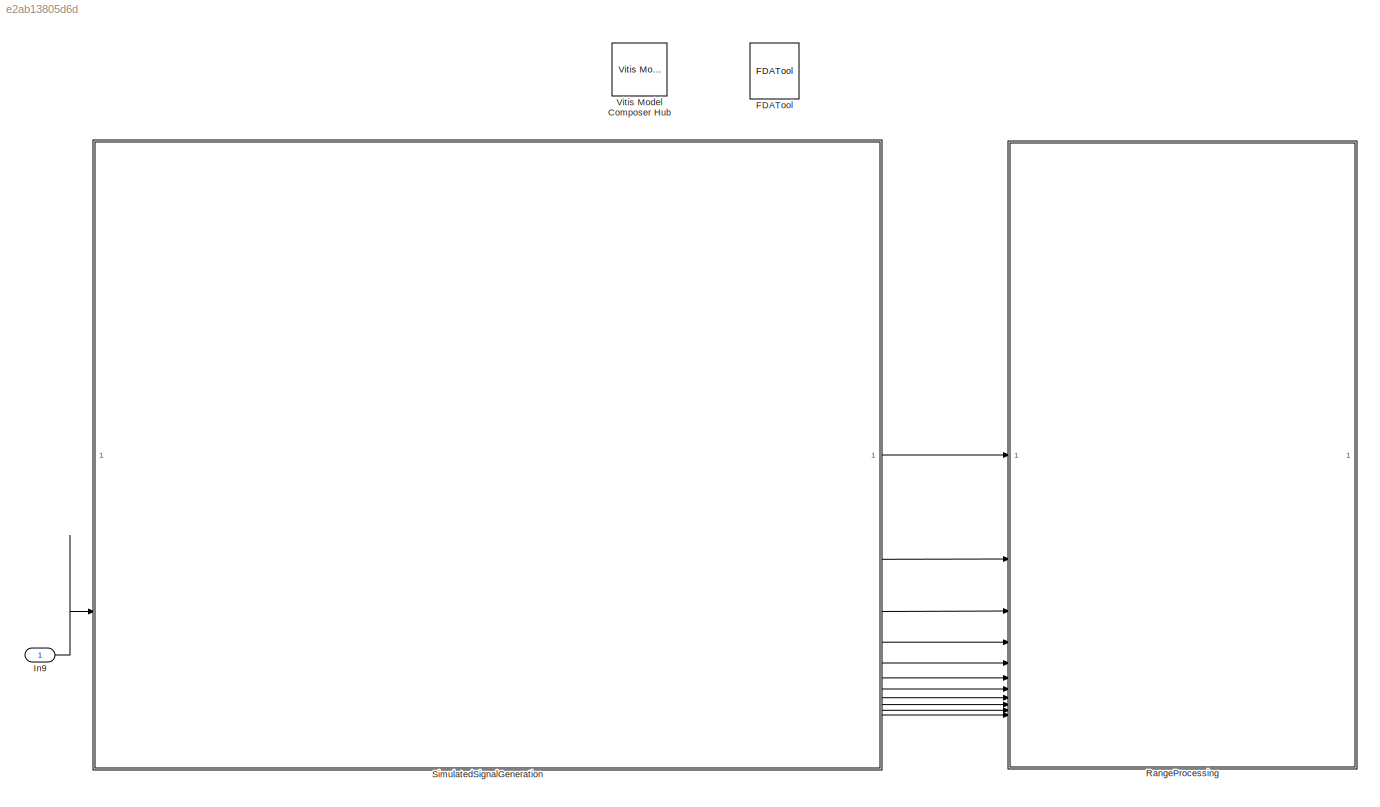
MODEL slx_e2ab13805d6d
KIND model
CONFIG AbsTol = auto
CONFIG EnableMultiTasking = off
CONFIG FixedStep = auto
CONFIG MaxStep = auto
CONFIG MinStep = auto
CONFIG RelTol = 1e-3
CONFIG SampleTimeConstraint = Unconstrained
CONFIG SolverName = VariableStepAuto
CONFIG StartTime = 0.0
CONFIG StopTime = 0.001
BLOCK [Reference] FDATool  REF=hdlUtilities/FDATool
  SourceBlock = hdlUtilities/FDATool
  SourceType = Xilinx FDATool Interface Block
  UserDataPersistent = on
BLOCK [Inport] In9
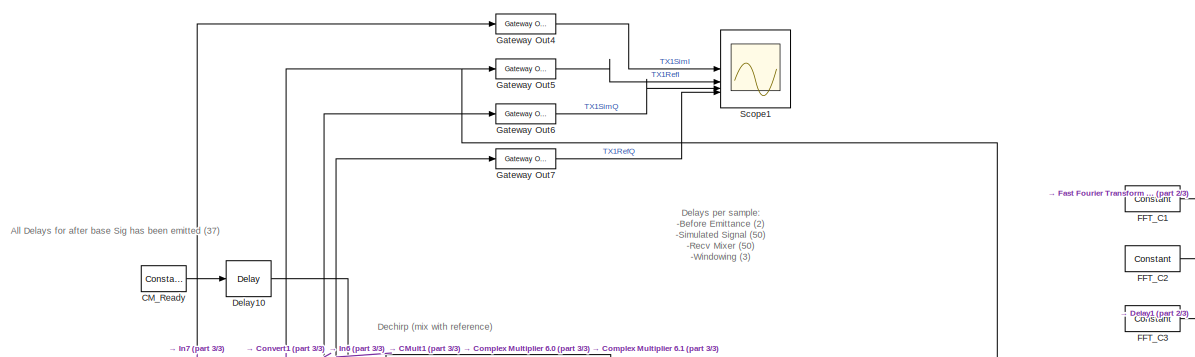
[diagram: RangeProcessing - part 1/3, top left region]
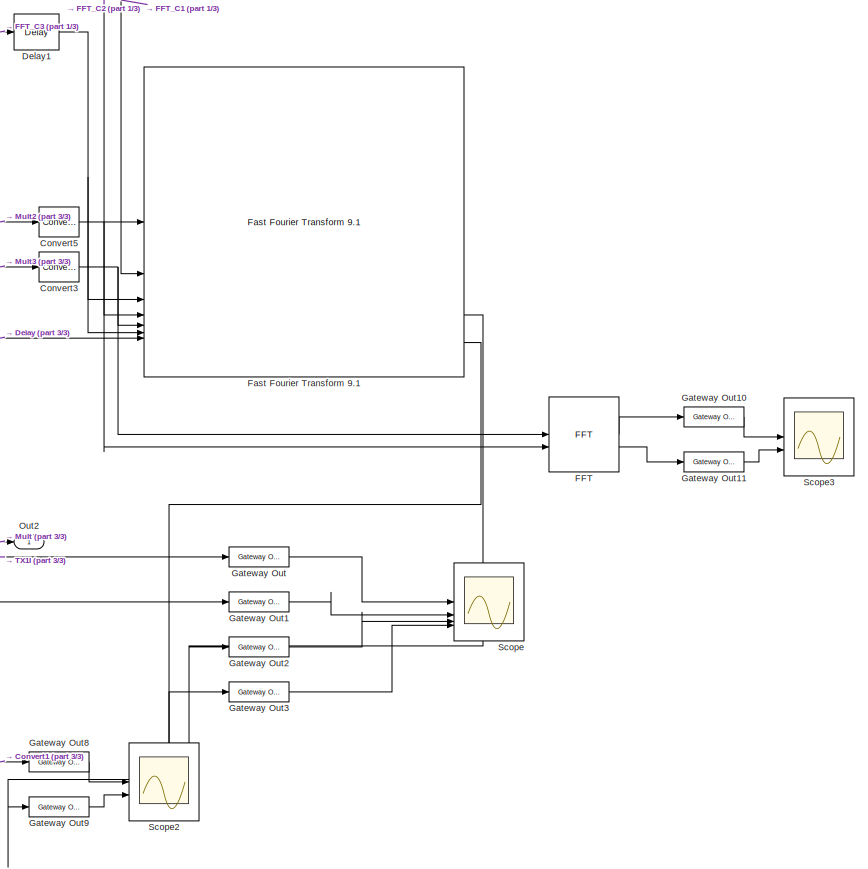
[diagram: RangeProcessing - part 2/3, middle right region]
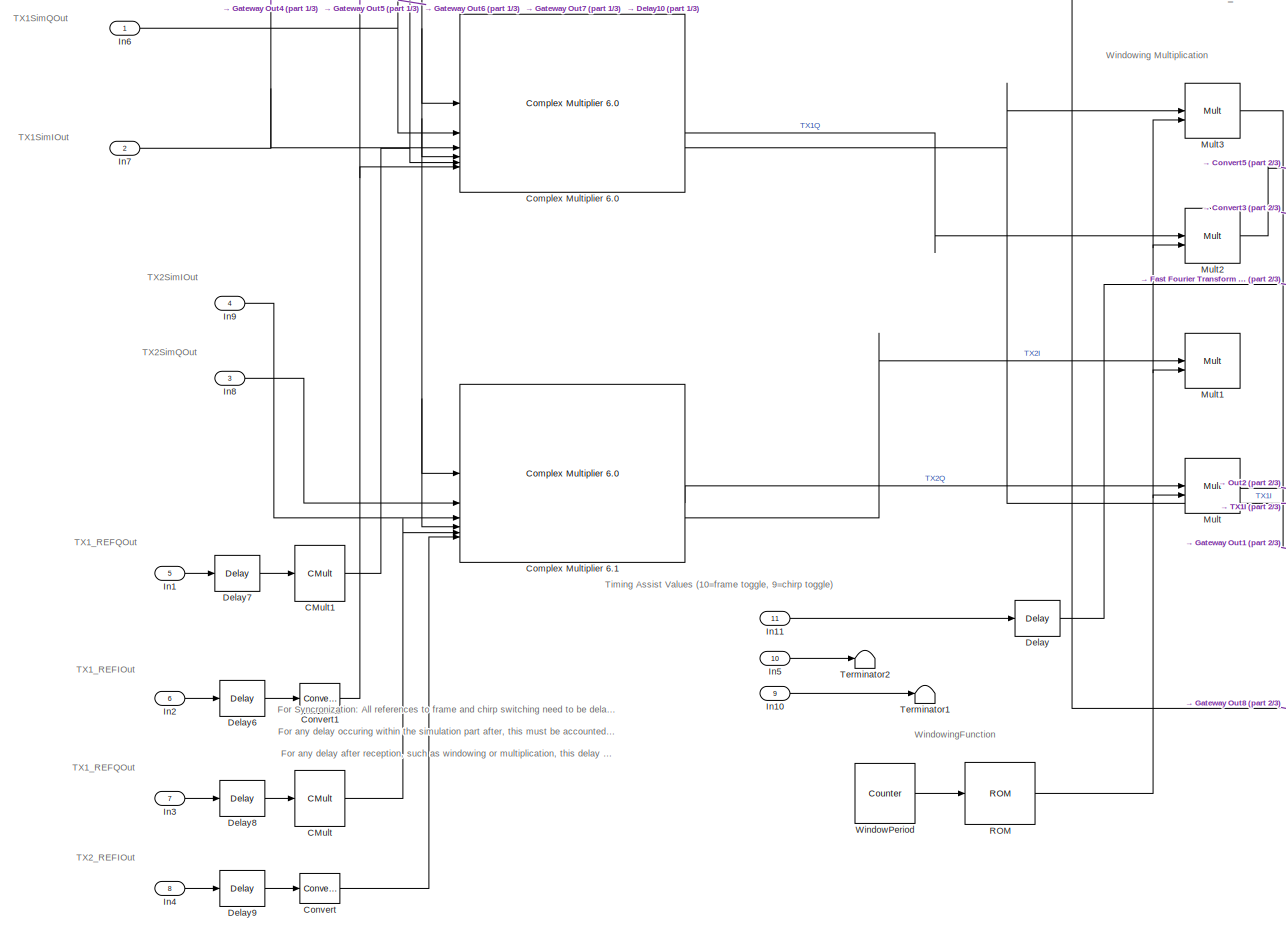
[diagram: RangeProcessing - part 3/3, middle left region]
BLOCK [SubSystem] RangeProcessing
BLOCK [Reference] RangeProcessing/CM_Ready  REF=hdlBasic/Constant
  SourceBlock = hdlBasic/Constant
  SourceType = Constant Block Block
BLOCK [Reference] RangeProcessing/CMult  REF=hdlBasic/CMult
  SourceBlock = hdlBasic/CMult
  SourceType = Constant Multiplier Block
BLOCK [Reference] RangeProcessing/CMult1  REF=hdlBasic/CMult
  SourceBlock = hdlBasic/CMult
  SourceType = Constant Multiplier Block
BLOCK [Reference] RangeProcessing/Complex Multiplier 6.0  REF=hdlDSPIP/Complex Multiplier 6.0 
  SourceBlock = hdlDSPIP/Complex Multiplier 6.0
  SourceType = Complex Multiplier 6.0  Block
BLOCK [Reference] RangeProcessing/Complex Multiplier 6.1  REF=hdlDSPIP/Complex Multiplier 6.0 
  SourceBlock = hdlDSPIP/Complex Multiplier 6.0
  SourceType = Complex Multiplier 6.0  Block
BLOCK [Reference] RangeProcessing/Convert  REF=hdlBasic/Convert
  SourceBlock = hdlBasic/Convert
  SourceType = Type Converter Block
BLOCK [Reference] RangeProcessing/Convert1  REF=hdlBasic/Convert
  SourceBlock = hdlBasic/Convert
  SourceType = Type Converter Block
BLOCK [Reference] RangeProcessing/Convert3  REF=hdlBasic/Convert
  SourceBlock = hdlBasic/Convert
  SourceType = Type Converter Block
BLOCK [Reference] RangeProcessing/Convert5  REF=hdlBasic/Convert
  SourceBlock = hdlBasic/Convert
  SourceType = Type Converter Block
BLOCK [Reference] RangeProcessing/Delay  REF=hdlBasic/Delay
  SourceBlock = hdlBasic/Delay
  SourceType = Delay Block
BLOCK [Reference] RangeProcessing/Delay1  REF=hdlBasic/Delay
  SourceBlock = hdlBasic/Delay
  SourceType = Delay Block
BLOCK [Reference] RangeProcessing/Delay10  REF=hdlBasic/Delay
  SourceBlock = hdlBasic/Delay
  SourceType = Delay Block
BLOCK [Reference] RangeProcessing/Delay6  REF=hdlBasic/Delay
  SourceBlock = hdlBasic/Delay
  SourceType = Delay Block
BLOCK [Reference] RangeProcessing/Delay7  REF=hdlBasic/Delay
  SourceBlock = hdlBasic/Delay
  SourceType = Delay Block
BLOCK [Reference] RangeProcessing/Delay8  REF=hdlBasic/Delay
  SourceBlock = hdlBasic/Delay
  SourceType = Delay Block
BLOCK [Reference] RangeProcessing/Delay9  REF=hdlBasic/Delay
  SourceBlock = hdlBasic/Delay
  SourceType = Delay Block
BLOCK [Reference] RangeProcessing/FFT  REF=hdlBasic/FFT
  SourceBlock = hdlBasic/FFT
  SourceType = Forward Fast Fourier Transform Block
BLOCK [Reference] RangeProcessing/FFT_C1  REF=hdlBasic/Constant
  SourceBlock = hdlBasic/Constant
  SourceType = Constant Block Block
BLOCK [Reference] RangeProcessing/FFT_C2  REF=hdlBasic/Constant
  SourceBlock = hdlBasic/Constant
  SourceType = Constant Block Block
BLOCK [Reference] RangeProcessing/FFT_C3  REF=hdlBasic/Constant
  SourceBlock = hdlBasic/Constant
  SourceType = Constant Block Block
BLOCK [Reference] RangeProcessing/Fast Fourier Transform 9.1  REF=hdlDSPIP/Fast Fourier Transform 9.1 
  SourceBlock = hdlDSPIP/Fast Fourier Transform 9.1
  SourceType = Fast Fourier Transform 9.1  Block
BLOCK [Reference] RangeProcessing/Gateway Out  REF=hdlBasic/Gateway Out
  SourceBlock = hdlBasic/Gateway Out
  SourceType = Gateway Out Block
BLOCK [Reference] RangeProcessing/Gateway Out1  REF=hdlBasic/Gateway Out
  SourceBlock = hdlBasic/Gateway Out
  SourceType = Gateway Out Block
BLOCK [Reference] RangeProcessing/Gateway Out10  REF=hdlBasic/Gateway Out
  SourceBlock = hdlBasic/Gateway Out
  SourceType = Gateway Out Block
BLOCK [Reference] RangeProcessing/Gateway Out11  REF=hdlBasic/Gateway Out
  SourceBlock = hdlBasic/Gateway Out
  SourceType = Gateway Out Block
BLOCK [Reference] RangeProcessing/Gateway Out2  REF=hdlBasic/Gateway Out
  SourceBlock = hdlBasic/Gateway Out
  SourceType = Gateway Out Block
BLOCK [Reference] RangeProcessing/Gateway Out3  REF=hdlBasic/Gateway Out
  SourceBlock = hdlBasic/Gateway Out
  SourceType = Gateway Out Block
BLOCK [Reference] RangeProcessing/Gateway Out4  REF=hdlBasic/Gateway Out
  SourceBlock = hdlBasic/Gateway Out
  SourceType = Gateway Out Block
BLOCK [Reference] RangeProcessing/Gateway Out5  REF=hdlBasic/Gateway Out
  SourceBlock = hdlBasic/Gateway Out
  SourceType = Gateway Out Block
BLOCK [Reference] RangeProcessing/Gateway Out6  REF=hdlBasic/Gateway Out
  SourceBlock = hdlBasic/Gateway Out
  SourceType = Gateway Out Block
BLOCK [Reference] RangeProcessing/Gateway Out7  REF=hdlBasic/Gateway Out
  SourceBlock = hdlBasic/Gateway Out
  SourceType = Gateway Out Block
BLOCK [Reference] RangeProcessing/Gateway Out8  REF=hdlBasic/Gateway Out
  SourceBlock = hdlBasic/Gateway Out
  SourceType = Gateway Out Block
BLOCK [Reference] RangeProcessing/Gateway Out9  REF=hdlBasic/Gateway Out
  SourceBlock = hdlBasic/Gateway Out
  SourceType = Gateway Out Block
BLOCK [Inport] RangeProcessing/In1
  Port = 5
BLOCK [Inport] RangeProcessing/In10
  Port = 9
BLOCK [Inport] RangeProcessing/In11
  Port = 11
BLOCK [Inport] RangeProcessing/In2
  Port = 6
BLOCK [Inport] RangeProcessing/In3
  Port = 7
BLOCK [Inport] RangeProcessing/In4
  Port = 8
BLOCK [Inport] RangeProcessing/In5
  Port = 10
BLOCK [Inport] RangeProcessing/In6
BLOCK [Inport] RangeProcessing/In7
  Port = 2
BLOCK [Inport] RangeProcessing/In8
  Port = 3
BLOCK [Inport] RangeProcessing/In9
  Port = 4
BLOCK [Reference] RangeProcessing/Mult  REF=hdlBasic/Mult
  SourceBlock = hdlBasic/Mult
  SourceType = Multiplier Block
BLOCK [Reference] RangeProcessing/Mult1  REF=hdlBasic/Mult
  SourceBlock = hdlBasic/Mult
  SourceType = Multiplier Block
BLOCK [Reference] RangeProcessing/Mult2  REF=hdlBasic/Mult
  SourceBlock = hdlBasic/Mult
  SourceType = Multiplier Block
BLOCK [Reference] RangeProcessing/Mult3  REF=hdlBasic/Mult
  SourceBlock = hdlBasic/Mult
  SourceType = Multiplier Block
BLOCK [Outport] RangeProcessing/Out2
BLOCK [Reference] RangeProcessing/ROM  REF=hdlBasic/ROM
  SourceBlock = hdlBasic/ROM
  SourceType = Single Port Read-Only Memory Block
BLOCK [Scope] RangeProcessing/Scope
  Floating = off
  NumInputPorts = 4
  ScopeSpecificationString = Simulink.scopes.TimeScopeBlockCfg('CurrentConfiguration', extmgr.ConfigurationSet(extmgr.Configuration('Core','General UI',true),extmgr.Configuration('Core','Source UI',true),extmgr.Configuration('Sources','WiredSimulink',true),extmgr.Configuration('Visuals','Time Domain',true,'SerializedDisplays',{struct('MinYLimReal','-1.24977','MaxYLimReal','1.24977','YLabelReal','','MinYLimMag','0.00000','MaxY...<+4159ch>
BLOCK [Scope] RangeProcessing/Scope1
  Floating = off
  NumInputPorts = 4
  ScopeSpecificationString = Simulink.scopes.TimeScopeBlockCfg('CurrentConfiguration', extmgr.ConfigurationSet(extmgr.Configuration('Core','General UI',true),extmgr.Configuration('Core','Source UI',true),extmgr.Configuration('Sources','WiredSimulink',true,'DataLoggingVariableName','ScopeData1'),extmgr.Configuration('Visuals','Time Domain',true,'SerializedDisplays',{struct('MinYLimReal','-1.24977','MaxYLimReal','1.24977','YLab...<+3833ch>
BLOCK [Scope] RangeProcessing/Scope2
  Floating = off
  NumInputPorts = 2
  ScopeSpecificationString = Simulink.scopes.TimeScopeBlockCfg('CurrentConfiguration', extmgr.ConfigurationSet(extmgr.Configuration('Core','General UI',true),extmgr.Configuration('Core','Source UI',true),extmgr.Configuration('Sources','WiredSimulink',true,'DataLoggingVariableName','ScopeData1'),extmgr.Configuration('Visuals','Time Domain',true,'SerializedDisplays',{struct('MinYLimReal','-1.24977','MaxYLimReal','1.24977','YLab...<+2620ch>
BLOCK [Scope] RangeProcessing/Scope3
  Floating = off
  NumInputPorts = 2
  ScopeSpecificationString = Simulink.scopes.TimeScopeBlockCfg('CurrentConfiguration', extmgr.ConfigurationSet(extmgr.Configuration('Core','General UI',true),extmgr.Configuration('Core','Source UI',true),extmgr.Configuration('Sources','WiredSimulink',true,'DataLoggingVariableName','ScopeData2'),extmgr.Configuration('Visuals','Time Domain',true,'SerializedDisplays',{struct('MinYLimReal','-1.24977','MaxYLimReal','1.24977','YLab...<+2597ch>
BLOCK [Terminator] RangeProcessing/Terminator1
BLOCK [Terminator] RangeProcessing/Terminator2
BLOCK [Reference] RangeProcessing/WindowPeriod  REF=hdlBasic/Counter
  SourceBlock = hdlBasic/Counter
  SourceType = Counter Block
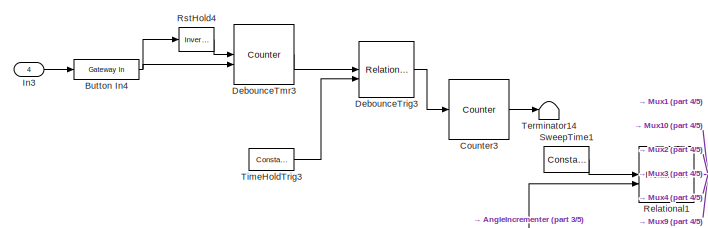
[diagram: SimulatedSignalGeneration - part 1/5, top left region]
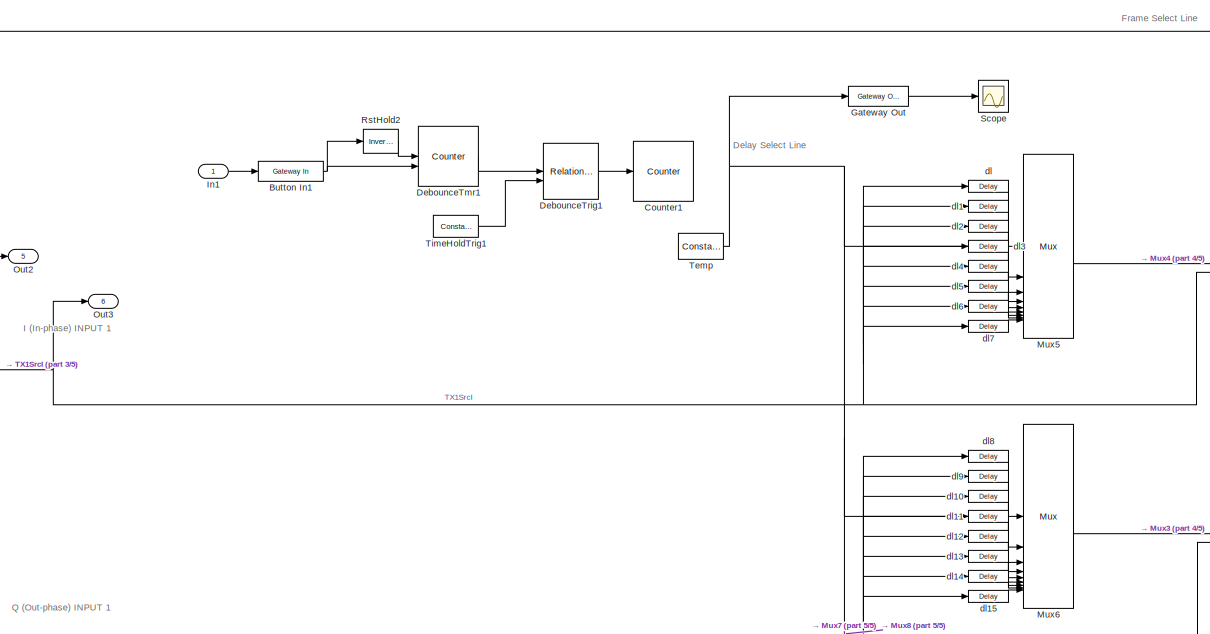
[diagram: SimulatedSignalGeneration - part 2/5, top center region]
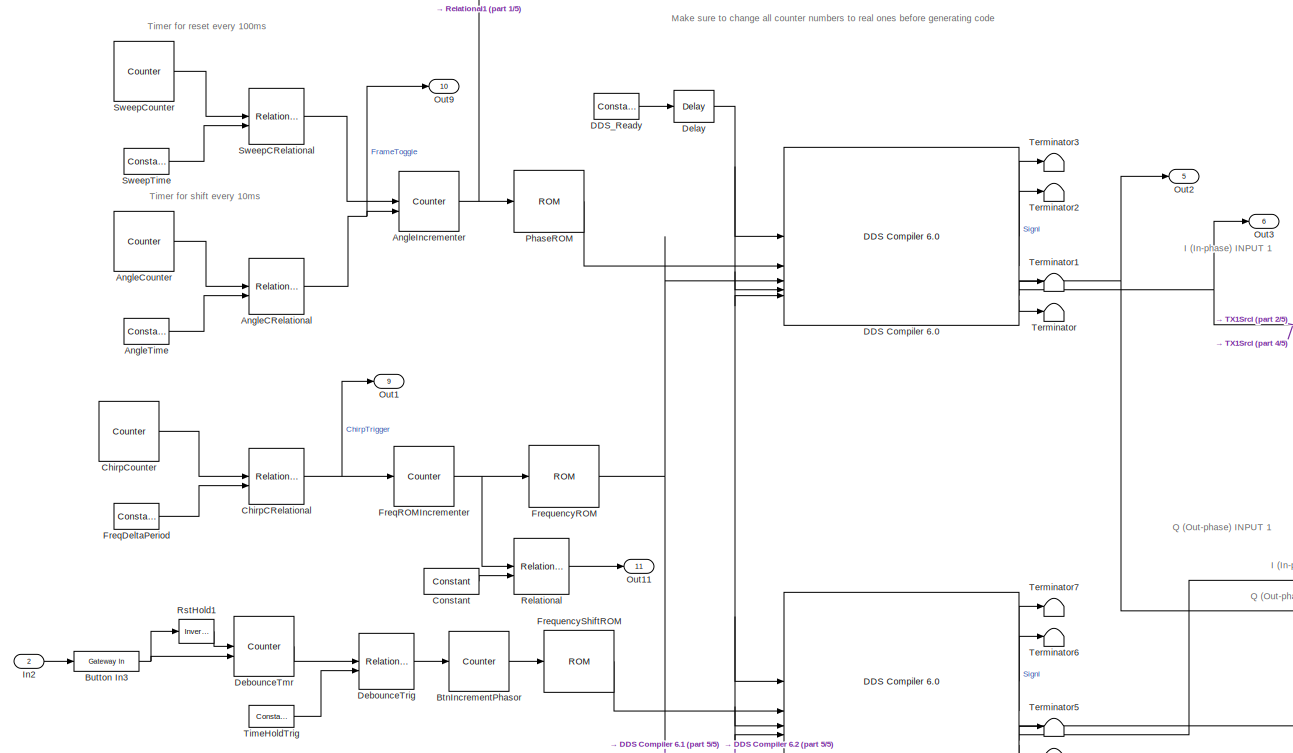
[diagram: SimulatedSignalGeneration - part 3/5, middle left region]
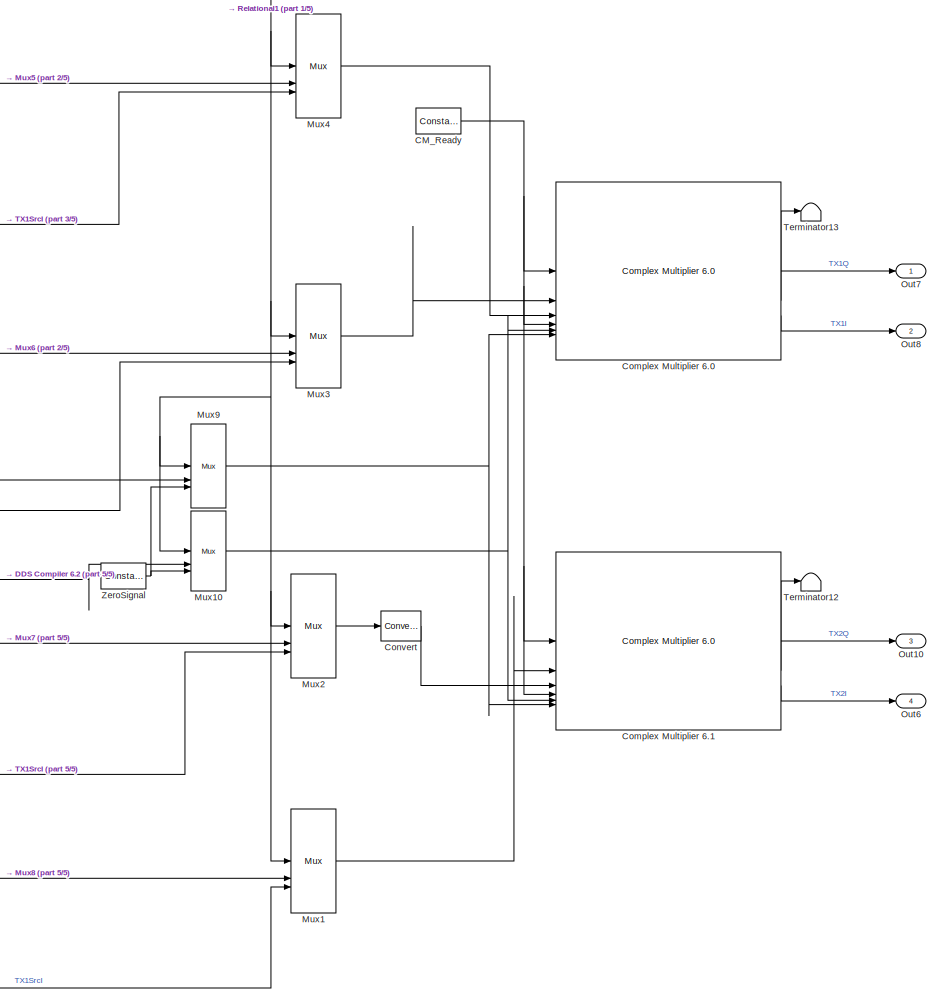
[diagram: SimulatedSignalGeneration - part 4/5, middle right region]
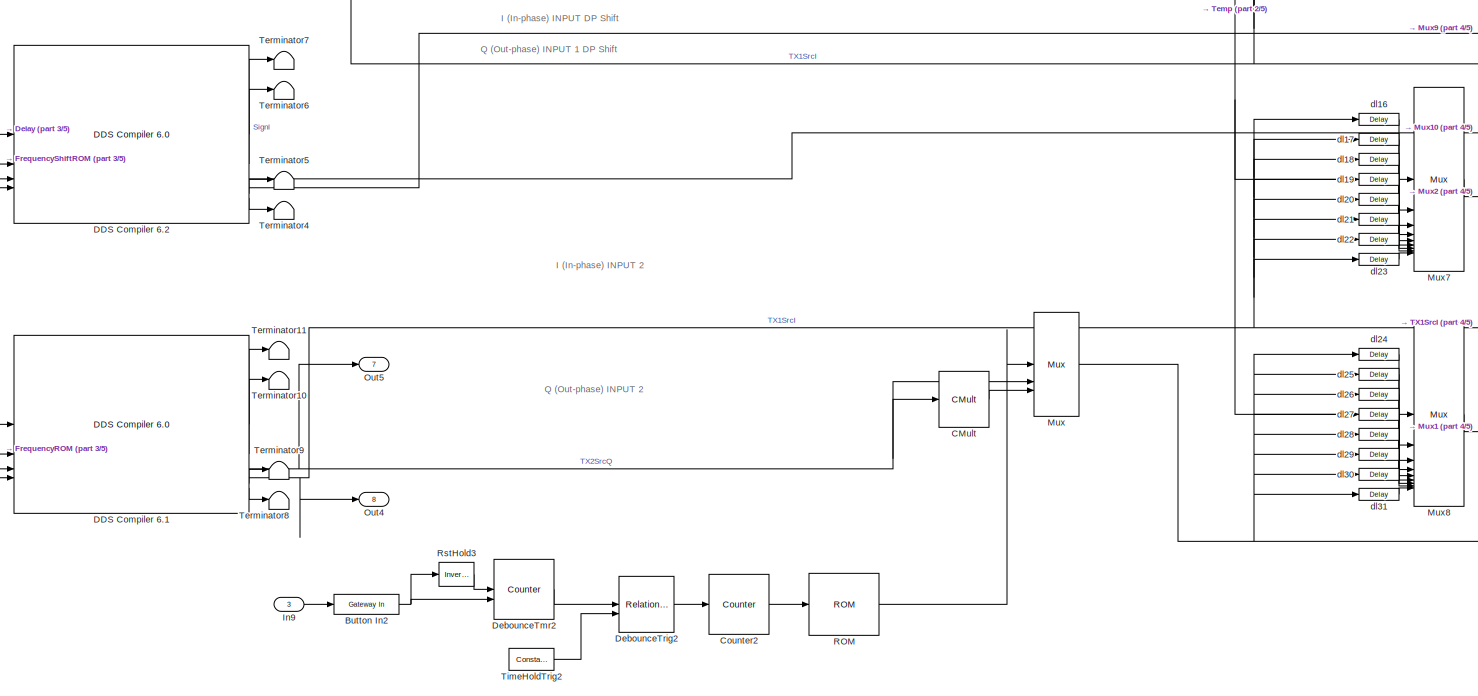
[diagram: SimulatedSignalGeneration - part 5/5, bottom center region]
BLOCK [SubSystem] SimulatedSignalGeneration
  SystemSampleTime = 1/200e6
BLOCK [Reference] SimulatedSignalGeneration/AngleCRelational  REF=hdlBasic/Relational
  SourceBlock = hdlBasic/Relational
  SourceType = Arithmetic Relational Operator Block
BLOCK [Reference] SimulatedSignalGeneration/AngleCounter  REF=hdlBasic/Counter
  SourceBlock = hdlBasic/Counter
  SourceType = Counter Block
BLOCK [Reference] SimulatedSignalGeneration/AngleIncrementer  REF=hdlBasic/Counter
  SourceBlock = hdlBasic/Counter
  SourceType = Counter Block
BLOCK [Reference] SimulatedSignalGeneration/AngleTime  REF=hdlBasic/Constant
  SourceBlock = hdlBasic/Constant
  SourceType = Constant Block Block
BLOCK [Reference] SimulatedSignalGeneration/BtnIncrementPhasor  REF=hdlBasic/Counter
  SourceBlock = hdlBasic/Counter
  SourceType = Counter Block
BLOCK [Reference] SimulatedSignalGeneration/Button In1  REF=hdlBasic/Gateway In
  SourceBlock = hdlBasic/Gateway In
  SourceType = Gateway In Block
BLOCK [Reference] SimulatedSignalGeneration/Button In2  REF=hdlBasic/Gateway In
  SourceBlock = hdlBasic/Gateway In
  SourceType = Gateway In Block
BLOCK [Reference] SimulatedSignalGeneration/Button In3  REF=hdlBasic/Gateway In
  SourceBlock = hdlBasic/Gateway In
  SourceType = Gateway In Block
BLOCK [Reference] SimulatedSignalGeneration/Button In4  REF=hdlBasic/Gateway In
  SourceBlock = hdlBasic/Gateway In
  SourceType = Gateway In Block
BLOCK [Reference] SimulatedSignalGeneration/CM_Ready  REF=hdlBasic/Constant
  SourceBlock = hdlBasic/Constant
  SourceType = Constant Block Block
BLOCK [Reference] SimulatedSignalGeneration/CMult  REF=hdlBasic/CMult
  SourceBlock = hdlBasic/CMult
  SourceType = Constant Multiplier Block
BLOCK [Reference] SimulatedSignalGeneration/ChirpCRelational  REF=hdlBasic/Relational
  SourceBlock = hdlBasic/Relational
  SourceType = Arithmetic Relational Operator Block
BLOCK [Reference] SimulatedSignalGeneration/ChirpCounter  REF=hdlBasic/Counter
  SourceBlock = hdlBasic/Counter
  SourceType = Counter Block
BLOCK [Reference] SimulatedSignalGeneration/Complex Multiplier 6.0  REF=hdlDSPIP/Complex Multiplier 6.0 
  SourceBlock = hdlDSPIP/Complex Multiplier 6.0
  SourceType = Complex Multiplier 6.0  Block
BLOCK [Reference] SimulatedSignalGeneration/Complex Multiplier 6.1  REF=hdlDSPIP/Complex Multiplier 6.0 
  SourceBlock = hdlDSPIP/Complex Multiplier 6.0
  SourceType = Complex Multiplier 6.0  Block
BLOCK [Reference] SimulatedSignalGeneration/Constant  REF=hdlBasic/Constant
  SourceBlock = hdlBasic/Constant
  SourceType = Constant Block Block
BLOCK [Reference] SimulatedSignalGeneration/Convert  REF=hdlBasic/Convert
  SourceBlock = hdlBasic/Convert
  SourceType = Type Converter Block
BLOCK [Reference] SimulatedSignalGeneration/Counter1  REF=hdlBasic/Counter
  SourceBlock = hdlBasic/Counter
  SourceType = Counter Block
BLOCK [Reference] SimulatedSignalGeneration/Counter2  REF=hdlBasic/Counter
  SourceBlock = hdlBasic/Counter
  SourceType = Counter Block
BLOCK [Reference] SimulatedSignalGeneration/Counter3  REF=hdlBasic/Counter
  SourceBlock = hdlBasic/Counter
  SourceType = Counter Block
BLOCK [Reference] SimulatedSignalGeneration/DDS Compiler 6.0  REF=hdlDSPIP/DDS Compiler 6.0 
  SourceBlock = hdlDSPIP/DDS Compiler 6.0
  SourceType = DDS Compiler 6.0 Block
BLOCK [Reference] SimulatedSignalGeneration/DDS Compiler 6.1  REF=hdlDSPIP/DDS Compiler 6.0 
  SourceBlock = hdlDSPIP/DDS Compiler 6.0
  SourceType = DDS Compiler 6.0 Block
BLOCK [Reference] SimulatedSignalGeneration/DDS Compiler 6.2  REF=hdlDSPIP/DDS Compiler 6.0 
  SourceBlock = hdlDSPIP/DDS Compiler 6.0
  SourceType = DDS Compiler 6.0 Block
BLOCK [Reference] SimulatedSignalGeneration/DDS_Ready  REF=hdlBasic/Constant
  SourceBlock = hdlBasic/Constant
  SourceType = Constant Block Block
BLOCK [Reference] SimulatedSignalGeneration/DebounceTmr  REF=hdlBasic/Counter
  SourceBlock = hdlBasic/Counter
  SourceType = Counter Block
BLOCK [Reference] SimulatedSignalGeneration/DebounceTmr1  REF=hdlBasic/Counter
  SourceBlock = hdlBasic/Counter
  SourceType = Counter Block
BLOCK [Reference] SimulatedSignalGeneration/DebounceTmr2  REF=hdlBasic/Counter
  SourceBlock = hdlBasic/Counter
  SourceType = Counter Block
BLOCK [Reference] SimulatedSignalGeneration/DebounceTmr3  REF=hdlBasic/Counter
  SourceBlock = hdlBasic/Counter
  SourceType = Counter Block
BLOCK [Reference] SimulatedSignalGeneration/DebounceTrig  REF=hdlBasic/Relational
  SourceBlock = hdlBasic/Relational
  SourceType = Arithmetic Relational Operator Block
BLOCK [Reference] SimulatedSignalGeneration/DebounceTrig1  REF=hdlBasic/Relational
  SourceBlock = hdlBasic/Relational
  SourceType = Arithmetic Relational Operator Block
BLOCK [Reference] SimulatedSignalGeneration/DebounceTrig2  REF=hdlBasic/Relational
  SourceBlock = hdlBasic/Relational
  SourceType = Arithmetic Relational Operator Block
BLOCK [Reference] SimulatedSignalGeneration/DebounceTrig3  REF=hdlBasic/Relational
  SourceBlock = hdlBasic/Relational
  SourceType = Arithmetic Relational Operator Block
BLOCK [Reference] SimulatedSignalGeneration/Delay  REF=hdlBasic/Delay
  SourceBlock = hdlBasic/Delay
  SourceType = Delay Block
BLOCK [Reference] SimulatedSignalGeneration/FreqDeltaPeriod  REF=hdlBasic/Constant
  SourceBlock = hdlBasic/Constant
  SourceType = Constant Block Block
BLOCK [Reference] SimulatedSignalGeneration/FreqROMIncrementer  REF=hdlBasic/Counter
  SourceBlock = hdlBasic/Counter
  SourceType = Counter Block
BLOCK [Reference] SimulatedSignalGeneration/FrequencyROM  REF=hdlBasic/ROM
  SourceBlock = hdlBasic/ROM
  SourceType = Single Port Read-Only Memory Block
BLOCK [Reference] SimulatedSignalGeneration/FrequencyShiftROM  REF=hdlBasic/ROM
  SourceBlock = hdlBasic/ROM
  SourceType = Single Port Read-Only Memory Block
BLOCK [Reference] SimulatedSignalGeneration/Gateway Out  REF=hdlBasic/Gateway Out
  SourceBlock = hdlBasic/Gateway Out
  SourceType = Gateway Out Block
BLOCK [Inport] SimulatedSignalGeneration/In1
BLOCK [Inport] SimulatedSignalGeneration/In2
  Port = 2
BLOCK [Inport] SimulatedSignalGeneration/In3
  Port = 4
BLOCK [Inport] SimulatedSignalGeneration/In9
  Port = 3
BLOCK [Reference] SimulatedSignalGeneration/Mux  REF=hdlBasic/Mux
  SourceBlock = hdlBasic/Mux
  SourceType = Bus Multiplexer Block
BLOCK [Reference] SimulatedSignalGeneration/Mux1  REF=hdlBasic/Mux
  SourceBlock = hdlBasic/Mux
  SourceType = Bus Multiplexer Block
BLOCK [Reference] SimulatedSignalGeneration/Mux10  REF=hdlBasic/Mux
  SourceBlock = hdlBasic/Mux
  SourceType = Bus Multiplexer Block
BLOCK [Reference] SimulatedSignalGeneration/Mux2  REF=hdlBasic/Mux
  SourceBlock = hdlBasic/Mux
  SourceType = Bus Multiplexer Block
BLOCK [Reference] SimulatedSignalGeneration/Mux3  REF=hdlBasic/Mux
  SourceBlock = hdlBasic/Mux
  SourceType = Bus Multiplexer Block
BLOCK [Reference] SimulatedSignalGeneration/Mux4  REF=hdlBasic/Mux
  SourceBlock = hdlBasic/Mux
  SourceType = Bus Multiplexer Block
BLOCK [Reference] SimulatedSignalGeneration/Mux5  REF=hdlBasic/Mux
  SourceBlock = hdlBasic/Mux
  SourceType = Bus Multiplexer Block
BLOCK [Reference] SimulatedSignalGeneration/Mux6  REF=hdlBasic/Mux
  SourceBlock = hdlBasic/Mux
  SourceType = Bus Multiplexer Block
BLOCK [Reference] SimulatedSignalGeneration/Mux7  REF=hdlBasic/Mux
  SourceBlock = hdlBasic/Mux
  SourceType = Bus Multiplexer Block
BLOCK [Reference] SimulatedSignalGeneration/Mux8  REF=hdlBasic/Mux
  SourceBlock = hdlBasic/Mux
  SourceType = Bus Multiplexer Block
BLOCK [Reference] SimulatedSignalGeneration/Mux9  REF=hdlBasic/Mux
  SourceBlock = hdlBasic/Mux
  SourceType = Bus Multiplexer Block
BLOCK [Outport] SimulatedSignalGeneration/Out1
  Port = 9
BLOCK [Outport] SimulatedSignalGeneration/Out10
  Port = 3
BLOCK [Outport] SimulatedSignalGeneration/Out11
  Port = 11
BLOCK [Outport] SimulatedSignalGeneration/Out2
  Port = 5
BLOCK [Outport] SimulatedSignalGeneration/Out3
  Port = 6
BLOCK [Outport] SimulatedSignalGeneration/Out4
  Port = 8
BLOCK [Outport] SimulatedSignalGeneration/Out5
  Port = 7
BLOCK [Outport] SimulatedSignalGeneration/Out6
  Port = 4
BLOCK [Outport] SimulatedSignalGeneration/Out7
BLOCK [Outport] SimulatedSignalGeneration/Out8
  Port = 2
BLOCK [Outport] SimulatedSignalGeneration/Out9
  Port = 10
BLOCK [Reference] SimulatedSignalGeneration/PhaseROM  REF=hdlBasic/ROM
  SourceBlock = hdlBasic/ROM
  SourceType = Single Port Read-Only Memory Block
BLOCK [Reference] SimulatedSignalGeneration/ROM  REF=hdlBasic/ROM
  SourceBlock = hdlBasic/ROM
  SourceType = Single Port Read-Only Memory Block
BLOCK [Reference] SimulatedSignalGeneration/Relational  REF=hdlBasic/Relational
  SourceBlock = hdlBasic/Relational
  SourceType = Arithmetic Relational Operator Block
BLOCK [Reference] SimulatedSignalGeneration/Relational1  REF=hdlBasic/Relational
  SourceBlock = hdlBasic/Relational
  SourceType = Arithmetic Relational Operator Block
BLOCK [Reference] SimulatedSignalGeneration/RstHold1  REF=hdlBasic/Inverter
  SourceBlock = hdlBasic/Inverter
  SourceType = Inverter Block
BLOCK [Reference] SimulatedSignalGeneration/RstHold2  REF=hdlBasic/Inverter
  SourceBlock = hdlBasic/Inverter
  SourceType = Inverter Block
BLOCK [Reference] SimulatedSignalGeneration/RstHold3  REF=hdlBasic/Inverter
  SourceBlock = hdlBasic/Inverter
  SourceType = Inverter Block
BLOCK [Reference] SimulatedSignalGeneration/RstHold4  REF=hdlBasic/Inverter
  SourceBlock = hdlBasic/Inverter
  SourceType = Inverter Block
BLOCK [Scope] SimulatedSignalGeneration/Scope
  Floating = off
  NumInputPorts = 1
  ScopeSpecificationString = Simulink.scopes.TimeScopeBlockCfg('CurrentConfiguration', extmgr.ConfigurationSet(extmgr.Configuration('Core','General UI',true),extmgr.Configuration('Core','Source UI',true),extmgr.Configuration('Sources','WiredSimulink',true,'DataLoggingVariableName','ScopeData2'),extmgr.Configuration('Visuals','Time Domain',true,'SerializedDisplays',{struct('MinYLimReal','-1.00000','MaxYLimReal','1.00000','YLab...<+1459ch>
BLOCK [Reference] SimulatedSignalGeneration/SweepCRelational  REF=hdlBasic/Relational
  SourceBlock = hdlBasic/Relational
  SourceType = Arithmetic Relational Operator Block
BLOCK [Reference] SimulatedSignalGeneration/SweepCounter  REF=hdlBasic/Counter
  SourceBlock = hdlBasic/Counter
  SourceType = Counter Block
BLOCK [Reference] SimulatedSignalGeneration/SweepTime  REF=hdlBasic/Constant
  SourceBlock = hdlBasic/Constant
  SourceType = Constant Block Block
BLOCK [Reference] SimulatedSignalGeneration/SweepTime1  REF=hdlBasic/Constant
  SourceBlock = hdlBasic/Constant
  SourceType = Constant Block Block
BLOCK [Reference] SimulatedSignalGeneration/Temp  REF=hdlBasic/Constant
  SourceBlock = hdlBasic/Constant
  SourceType = Constant Block Block
BLOCK [Terminator] SimulatedSignalGeneration/Terminator
BLOCK [Terminator] SimulatedSignalGeneration/Terminator1
BLOCK [Terminator] SimulatedSignalGeneration/Terminator10
BLOCK [Terminator] SimulatedSignalGeneration/Terminator11
BLOCK [Terminator] SimulatedSignalGeneration/Terminator12
BLOCK [Terminator] SimulatedSignalGeneration/Terminator13
BLOCK [Terminator] SimulatedSignalGeneration/Terminator14
BLOCK [Terminator] SimulatedSignalGeneration/Terminator2
BLOCK [Terminator] SimulatedSignalGeneration/Terminator3
BLOCK [Terminator] SimulatedSignalGeneration/Terminator4
BLOCK [Terminator] SimulatedSignalGeneration/Terminator5
BLOCK [Terminator] SimulatedSignalGeneration/Terminator6
BLOCK [Terminator] SimulatedSignalGeneration/Terminator7
BLOCK [Terminator] SimulatedSignalGeneration/Terminator8
BLOCK [Terminator] SimulatedSignalGeneration/Terminator9
BLOCK [Reference] SimulatedSignalGeneration/TimeHoldTrig  REF=hdlBasic/Constant
  SourceBlock = hdlBasic/Constant
  SourceType = Constant Block Block
BLOCK [Reference] SimulatedSignalGeneration/TimeHoldTrig1  REF=hdlBasic/Constant
  SourceBlock = hdlBasic/Constant
  SourceType = Constant Block Block
BLOCK [Reference] SimulatedSignalGeneration/TimeHoldTrig2  REF=hdlBasic/Constant
  SourceBlock = hdlBasic/Constant
  SourceType = Constant Block Block
BLOCK [Reference] SimulatedSignalGeneration/TimeHoldTrig3  REF=hdlBasic/Constant
  SourceBlock = hdlBasic/Constant
  SourceType = Constant Block Block
BLOCK [Reference] SimulatedSignalGeneration/ZeroSignal  REF=hdlBasic/Constant
  SourceBlock = hdlBasic/Constant
  SourceType = Constant Block Block
BLOCK [Reference] SimulatedSignalGeneration/dl  REF=hdlBasic/Delay
  SourceBlock = hdlBasic/Delay
  SourceType = Delay Block
BLOCK [Reference] SimulatedSignalGeneration/dl1  REF=hdlBasic/Delay
  SourceBlock = hdlBasic/Delay
  SourceType = Delay Block
BLOCK [Reference] SimulatedSignalGeneration/dl10  REF=hdlBasic/Delay
  SourceBlock = hdlBasic/Delay
  SourceType = Delay Block
BLOCK [Reference] SimulatedSignalGeneration/dl11  REF=hdlBasic/Delay
  SourceBlock = hdlBasic/Delay
  SourceType = Delay Block
BLOCK [Reference] SimulatedSignalGeneration/dl12  REF=hdlBasic/Delay
  SourceBlock = hdlBasic/Delay
  SourceType = Delay Block
BLOCK [Reference] SimulatedSignalGeneration/dl13  REF=hdlBasic/Delay
  SourceBlock = hdlBasic/Delay
  SourceType = Delay Block
BLOCK [Reference] SimulatedSignalGeneration/dl14  REF=hdlBasic/Delay
  SourceBlock = hdlBasic/Delay
  SourceType = Delay Block
BLOCK [Reference] SimulatedSignalGeneration/dl15  REF=hdlBasic/Delay
  SourceBlock = hdlBasic/Delay
  SourceType = Delay Block
BLOCK [Reference] SimulatedSignalGeneration/dl16  REF=hdlBasic/Delay
  SourceBlock = hdlBasic/Delay
  SourceType = Delay Block
BLOCK [Reference] SimulatedSignalGeneration/dl17  REF=hdlBasic/Delay
  SourceBlock = hdlBasic/Delay
  SourceType = Delay Block
BLOCK [Reference] SimulatedSignalGeneration/dl18  REF=hdlBasic/Delay
  SourceBlock = hdlBasic/Delay
  SourceType = Delay Block
BLOCK [Reference] SimulatedSignalGeneration/dl19  REF=hdlBasic/Delay
  SourceBlock = hdlBasic/Delay
  SourceType = Delay Block
BLOCK [Reference] SimulatedSignalGeneration/dl2  REF=hdlBasic/Delay
  SourceBlock = hdlBasic/Delay
  SourceType = Delay Block
BLOCK [Reference] SimulatedSignalGeneration/dl20  REF=hdlBasic/Delay
  SourceBlock = hdlBasic/Delay
  SourceType = Delay Block
BLOCK [Reference] SimulatedSignalGeneration/dl21  REF=hdlBasic/Delay
  SourceBlock = hdlBasic/Delay
  SourceType = Delay Block
BLOCK [Reference] SimulatedSignalGeneration/dl22  REF=hdlBasic/Delay
  SourceBlock = hdlBasic/Delay
  SourceType = Delay Block
BLOCK [Reference] SimulatedSignalGeneration/dl23  REF=hdlBasic/Delay
  SourceBlock = hdlBasic/Delay
  SourceType = Delay Block
BLOCK [Reference] SimulatedSignalGeneration/dl24  REF=hdlBasic/Delay
  SourceBlock = hdlBasic/Delay
  SourceType = Delay Block
BLOCK [Reference] SimulatedSignalGeneration/dl25  REF=hdlBasic/Delay
  SourceBlock = hdlBasic/Delay
  SourceType = Delay Block
BLOCK [Reference] SimulatedSignalGeneration/dl26  REF=hdlBasic/Delay
  SourceBlock = hdlBasic/Delay
  SourceType = Delay Block
BLOCK [Reference] SimulatedSignalGeneration/dl27  REF=hdlBasic/Delay
  SourceBlock = hdlBasic/Delay
  SourceType = Delay Block
BLOCK [Reference] SimulatedSignalGeneration/dl28  REF=hdlBasic/Delay
  SourceBlock = hdlBasic/Delay
  SourceType = Delay Block
BLOCK [Reference] SimulatedSignalGeneration/dl29  REF=hdlBasic/Delay
  SourceBlock = hdlBasic/Delay
  SourceType = Delay Block
BLOCK [Reference] SimulatedSignalGeneration/dl3  REF=hdlBasic/Delay
  SourceBlock = hdlBasic/Delay
  SourceType = Delay Block
BLOCK [Reference] SimulatedSignalGeneration/dl30  REF=hdlBasic/Delay
  SourceBlock = hdlBasic/Delay
  SourceType = Delay Block
BLOCK [Reference] SimulatedSignalGeneration/dl31  REF=hdlBasic/Delay
  SourceBlock = hdlBasic/Delay
  SourceType = Delay Block
BLOCK [Reference] SimulatedSignalGeneration/dl4  REF=hdlBasic/Delay
  SourceBlock = hdlBasic/Delay
  SourceType = Delay Block
BLOCK [Reference] SimulatedSignalGeneration/dl5  REF=hdlBasic/Delay
  SourceBlock = hdlBasic/Delay
  SourceType = Delay Block
BLOCK [Reference] SimulatedSignalGeneration/dl6  REF=hdlBasic/Delay
  SourceBlock = hdlBasic/Delay
  SourceType = Delay Block
BLOCK [Reference] SimulatedSignalGeneration/dl7  REF=hdlBasic/Delay
  SourceBlock = hdlBasic/Delay
  SourceType = Delay Block
BLOCK [Reference] SimulatedSignalGeneration/dl8  REF=hdlBasic/Delay
  SourceBlock = hdlBasic/Delay
  SourceType = Delay Block
BLOCK [Reference] SimulatedSignalGeneration/dl9  REF=hdlBasic/Delay
  SourceBlock = hdlBasic/Delay
  SourceType = Delay Block
BLOCK [Reference] Vitis Model Composer Hub  REF=vmcUtilities/Vitis Model Composer Hub
  SourceBlock = vmcUtilities/Vitis Model Composer Hub
  SourceType = VMC Hub
  Tag = genX
  UserDataPersistent = on
ANNOTATION RangeProcessing: Delays per sample: -Before Emittance (2) -Simulated Signal (50) -Recv Mixer (50) -Windowing (3)
ANNOTATION RangeProcessing: All Delays for after base Sig has been emitted (37)
ANNOTATION RangeProcessing: Dechirp (mix with reference)
ANNOTATION RangeProcessing: For Syncronization: All references to frame and chirp switching need to be delayed only by the amount of delay between when it is called to toggle, and when it leaves the radar system. For any delay occuring within the simulation part after, this must be accounted for in the addressable shift register (delay) which simulates range delay. This delay has nothing to do with determinng when a chirp or...<+398ch>
ANNOTATION RangeProcessing: TX1SimIOut
ANNOTATION RangeProcessing: TX1SimQOut
ANNOTATION RangeProcessing: TX1_REFIOut
ANNOTATION RangeProcessing: TX1_REFQOut
ANNOTATION RangeProcessing: TX2SimIOut
ANNOTATION RangeProcessing: TX2SimQOut
ANNOTATION RangeProcessing: TX2_REFIOut
ANNOTATION RangeProcessing: Timing Assist Values (10=frame toggle, 9=chirp toggle)
ANNOTATION RangeProcessing: Windowing Multiplication
ANNOTATION RangeProcessing: WindowingFunction
ANNOTATION SimulatedSignalGeneration: Make sure to change all counter numbers to real ones before generating code
ANNOTATION SimulatedSignalGeneration: Delay Select Line
ANNOTATION SimulatedSignalGeneration: Frame Select Line
ANNOTATION SimulatedSignalGeneration: I (In-phase) INPUT 1
ANNOTATION SimulatedSignalGeneration: I (In-phase) INPUT 2
ANNOTATION SimulatedSignalGeneration: I (In-phase) INPUT DP Shift
ANNOTATION SimulatedSignalGeneration: Q (Out-phase) INPUT 1
ANNOTATION SimulatedSignalGeneration: Q (Out-phase) INPUT 1 DP Shift
ANNOTATION SimulatedSignalGeneration: Q (Out-phase) INPUT 2
ANNOTATION SimulatedSignalGeneration: Timer for reset every 100ms
ANNOTATION SimulatedSignalGeneration: Timer for shift every 10ms
LINE In9:1 -> SimulatedSignalGeneration:3
LINE RangeProcessing/CM_Ready:1 -> RangeProcessing/Delay10:1
NET RangeProcessing/CMult1:1 -> RangeProcessing/Complex Multiplier 6.0:5, RangeProcessing/Gateway Out7:1
LINE RangeProcessing/CMult:1 -> RangeProcessing/Complex Multiplier 6.1:5
LINE RangeProcessing/Complex Multiplier 6.0:2 -> RangeProcessing/Mult2:1
NET RangeProcessing/Complex Multiplier 6.0:3 -> RangeProcessing/Gateway Out:1, RangeProcessing/Mult3:1
LINE RangeProcessing/Complex Multiplier 6.1:2 -> RangeProcessing/Mult:1
LINE RangeProcessing/Complex Multiplier 6.1:3 -> RangeProcessing/Mult1:1
NET RangeProcessing/Convert1:1 -> RangeProcessing/Complex Multiplier 6.0:6, RangeProcessing/Gateway Out5:1, RangeProcessing/Gateway Out8:1
NET RangeProcessing/Convert3:1 -> RangeProcessing/FFT:1, RangeProcessing/Fast Fourier Transform 9.1:5
NET RangeProcessing/Convert5:1 -> RangeProcessing/FFT:2, RangeProcessing/Fast Fourier Transform 9.1:4
LINE RangeProcessing/Convert:1 -> RangeProcessing/Complex Multiplier 6.1:6
NET RangeProcessing/Delay10:1 -> RangeProcessing/Complex Multiplier 6.0:1, RangeProcessing/Complex Multiplier 6.0:4, RangeProcessing/Complex Multiplier 6.1:1, RangeProcessing/Complex Multiplier 6.1:4
NET RangeProcessing/Delay1:1 -> RangeProcessing/Fast Fourier Transform 9.1:3, RangeProcessing/Fast Fourier Transform 9.1:6
LINE RangeProcessing/Delay6:1 -> RangeProcessing/Convert1:1
LINE RangeProcessing/Delay7:1 -> RangeProcessing/CMult1:1
LINE RangeProcessing/Delay8:1 -> RangeProcessing/CMult:1
LINE RangeProcessing/Delay9:1 -> RangeProcessing/Convert:1
LINE RangeProcessing/Delay:1 -> RangeProcessing/Fast Fourier Transform 9.1:7
LINE RangeProcessing/FFT:1 -> RangeProcessing/Gateway Out10:1
LINE RangeProcessing/FFT:2 -> RangeProcessing/Gateway Out11:1
LINE RangeProcessing/FFT_C1:1 -> RangeProcessing/Fast Fourier Transform 9.1:2
LINE RangeProcessing/FFT_C2:1 -> RangeProcessing/Fast Fourier Transform 9.1:1
LINE RangeProcessing/FFT_C3:1 -> RangeProcessing/Delay1:1
LINE RangeProcessing/Fast Fourier Transform 9.1:4 -> RangeProcessing/Gateway Out2:1
NET RangeProcessing/Fast Fourier Transform 9.1:8 -> RangeProcessing/Gateway Out3:1, RangeProcessing/Gateway Out9:1
LINE RangeProcessing/Gateway Out10:1 -> RangeProcessing/Scope3:1
LINE RangeProcessing/Gateway Out11:1 -> RangeProcessing/Scope3:2
LINE RangeProcessing/Gateway Out1:1 -> RangeProcessing/Scope:2
LINE RangeProcessing/Gateway Out2:1 -> RangeProcessing/Scope:3
LINE RangeProcessing/Gateway Out3:1 -> RangeProcessing/Scope:4
LINE RangeProcessing/Gateway Out4:1 -> RangeProcessing/Scope1:1
LINE RangeProcessing/Gateway Out5:1 -> RangeProcessing/Scope1:2
LINE RangeProcessing/Gateway Out6:1 -> RangeProcessing/Scope1:3
LINE RangeProcessing/Gateway Out7:1 -> RangeProcessing/Scope1:4
LINE RangeProcessing/Gateway Out8:1 -> RangeProcessing/Scope2:1
LINE RangeProcessing/Gateway Out9:1 -> RangeProcessing/Scope2:2
LINE RangeProcessing/Gateway Out:1 -> RangeProcessing/Scope:1
LINE RangeProcessing/In10:1 -> RangeProcessing/Terminator1:1
LINE RangeProcessing/In11:1 -> RangeProcessing/Delay:1
LINE RangeProcessing/In1:1 -> RangeProcessing/Delay7:1
LINE RangeProcessing/In2:1 -> RangeProcessing/Delay6:1
LINE RangeProcessing/In3:1 -> RangeProcessing/Delay8:1
LINE RangeProcessing/In4:1 -> RangeProcessing/Delay9:1
LINE RangeProcessing/In5:1 -> RangeProcessing/Terminator2:1
NET RangeProcessing/In6:1 -> RangeProcessing/Complex Multiplier 6.0:2, RangeProcessing/Gateway Out6:1
NET RangeProcessing/In7:1 -> RangeProcessing/Complex Multiplier 6.0:3, RangeProcessing/Gateway Out4:1
LINE RangeProcessing/In8:1 -> RangeProcessing/Complex Multiplier 6.1:2
LINE RangeProcessing/In9:1 -> RangeProcessing/Complex Multiplier 6.1:3
LINE RangeProcessing/Mult2:1 -> RangeProcessing/Convert5:1
NET RangeProcessing/Mult3:1 -> RangeProcessing/Convert3:1, RangeProcessing/Gateway Out1:1
LINE RangeProcessing/Mult:1 -> RangeProcessing/Out2:1
NET RangeProcessing/ROM:1 -> RangeProcessing/Mult1:2, RangeProcessing/Mult2:2, RangeProcessing/Mult3:2, RangeProcessing/Mult:2
LINE RangeProcessing/WindowPeriod:1 -> RangeProcessing/ROM:1
NET SimulatedSignalGeneration/AngleCRelational:1 -> SimulatedSignalGeneration/AngleIncrementer:2, SimulatedSignalGeneration/Out9:1
LINE SimulatedSignalGeneration/AngleCounter:1 -> SimulatedSignalGeneration/AngleCRelational:1
NET SimulatedSignalGeneration/AngleIncrementer:1 -> SimulatedSignalGeneration/PhaseROM:1, SimulatedSignalGeneration/Relational1:2
LINE SimulatedSignalGeneration/AngleTime:1 -> SimulatedSignalGeneration/AngleCRelational:2
LINE SimulatedSignalGeneration/BtnIncrementPhasor:1 -> SimulatedSignalGeneration/FrequencyShiftROM:1
NET SimulatedSignalGeneration/Button In1:1 -> SimulatedSignalGeneration/DebounceTmr1:2, SimulatedSignalGeneration/RstHold2:1
NET SimulatedSignalGeneration/Button In2:1 -> SimulatedSignalGeneration/DebounceTmr2:2, SimulatedSignalGeneration/RstHold3:1
NET SimulatedSignalGeneration/Button In3:1 -> SimulatedSignalGeneration/DebounceTmr:2, SimulatedSignalGeneration/RstHold1:1
NET SimulatedSignalGeneration/Button In4:1 -> SimulatedSignalGeneration/DebounceTmr3:2, SimulatedSignalGeneration/RstHold4:1
NET SimulatedSignalGeneration/CM_Ready:1 -> SimulatedSignalGeneration/Complex Multiplier 6.0:1, SimulatedSignalGeneration/Complex Multiplier 6.0:4, SimulatedSignalGeneration/Complex Multiplier 6.1:1, SimulatedSignalGeneration/Complex Multiplier 6.1:4
LINE SimulatedSignalGeneration/CMult:1 -> SimulatedSignalGeneration/Mux:3
NET SimulatedSignalGeneration/ChirpCRelational:1 -> SimulatedSignalGeneration/FreqROMIncrementer:1, SimulatedSignalGeneration/Out1:1
LINE SimulatedSignalGeneration/ChirpCounter:1 -> SimulatedSignalGeneration/ChirpCRelational:1
LINE SimulatedSignalGeneration/Complex Multiplier 6.0:1 -> SimulatedSignalGeneration/Terminator13:1
LINE SimulatedSignalGeneration/Complex Multiplier 6.0:2 -> SimulatedSignalGeneration/Out7:1
LINE SimulatedSignalGeneration/Complex Multiplier 6.0:3 -> SimulatedSignalGeneration/Out8:1
LINE SimulatedSignalGeneration/Complex Multiplier 6.1:1 -> SimulatedSignalGeneration/Terminator12:1
LINE SimulatedSignalGeneration/Complex Multiplier 6.1:2 -> SimulatedSignalGeneration/Out10:1
LINE SimulatedSignalGeneration/Complex Multiplier 6.1:3 -> SimulatedSignalGeneration/Out6:1
LINE SimulatedSignalGeneration/Constant:1 -> SimulatedSignalGeneration/Relational:2
LINE SimulatedSignalGeneration/Convert:1 -> SimulatedSignalGeneration/Complex Multiplier 6.1:3
LINE SimulatedSignalGeneration/Counter2:1 -> SimulatedSignalGeneration/ROM:1
LINE SimulatedSignalGeneration/Counter3:1 -> SimulatedSignalGeneration/Terminator14:1
LINE SimulatedSignalGeneration/DDS Compiler 6.0:1 -> SimulatedSignalGeneration/Terminator3:1
LINE SimulatedSignalGeneration/DDS Compiler 6.0:2 -> SimulatedSignalGeneration/Terminator2:1
NET SimulatedSignalGeneration/DDS Compiler 6.0:3 -> SimulatedSignalGeneration/Mux3:3, SimulatedSignalGeneration/Out2:1, SimulatedSignalGeneration/dl10:1, SimulatedSignalGeneration/dl11:1, SimulatedSignalGeneration/dl12:1, SimulatedSignalGeneration/dl13:1, SimulatedSignalGeneration/dl14:1, SimulatedSignalGeneration/dl15:1, SimulatedSignalGeneration/dl8:1, SimulatedSignalGeneration/dl9:1
NET SimulatedSignalGeneration/DDS Compiler 6.0:4 -> SimulatedSignalGeneration/Mux4:3, SimulatedSignalGeneration/Out3:1, SimulatedSignalGeneration/dl1:1, SimulatedSignalGeneration/dl2:1, SimulatedSignalGeneration/dl3:1, SimulatedSignalGeneration/dl4:1, SimulatedSignalGeneration/dl5:1, SimulatedSignalGeneration/dl6:1, SimulatedSignalGeneration/dl7:1, SimulatedSignalGeneration/dl:1
LINE SimulatedSignalGeneration/DDS Compiler 6.0:5 -> SimulatedSignalGeneration/Terminator1:1
LINE SimulatedSignalGeneration/DDS Compiler 6.0:6 -> SimulatedSignalGeneration/Terminator:1
LINE SimulatedSignalGeneration/DDS Compiler 6.1:1 -> SimulatedSignalGeneration/Terminator11:1
LINE SimulatedSignalGeneration/DDS Compiler 6.1:2 -> SimulatedSignalGeneration/Terminator10:1
NET SimulatedSignalGeneration/DDS Compiler 6.1:3 -> SimulatedSignalGeneration/CMult:1, SimulatedSignalGeneration/Mux:2, SimulatedSignalGeneration/Out5:1
NET SimulatedSignalGeneration/DDS Compiler 6.1:4 -> SimulatedSignalGeneration/Mux2:3, SimulatedSignalGeneration/Out4:1, SimulatedSignalGeneration/dl16:1, SimulatedSignalGeneration/dl17:1, SimulatedSignalGeneration/dl18:1, SimulatedSignalGeneration/dl19:1, SimulatedSignalGeneration/dl20:1, SimulatedSignalGeneration/dl21:1, SimulatedSignalGeneration/dl22:1, SimulatedSignalGeneration/dl23:1
LINE SimulatedSignalGeneration/DDS Compiler 6.1:5 -> SimulatedSignalGeneration/Terminator9:1
LINE SimulatedSignalGeneration/DDS Compiler 6.1:6 -> SimulatedSignalGeneration/Terminator8:1
LINE SimulatedSignalGeneration/DDS Compiler 6.2:1 -> SimulatedSignalGeneration/Terminator7:1
LINE SimulatedSignalGeneration/DDS Compiler 6.2:2 -> SimulatedSignalGeneration/Terminator6:1
LINE SimulatedSignalGeneration/DDS Compiler 6.2:3 -> SimulatedSignalGeneration/Mux10:2
LINE SimulatedSignalGeneration/DDS Compiler 6.2:4 -> SimulatedSignalGeneration/Mux9:2
LINE SimulatedSignalGeneration/DDS Compiler 6.2:5 -> SimulatedSignalGeneration/Terminator5:1
LINE SimulatedSignalGeneration/DDS Compiler 6.2:6 -> SimulatedSignalGeneration/Terminator4:1
LINE SimulatedSignalGeneration/DDS_Ready:1 -> SimulatedSignalGeneration/Delay:1
LINE SimulatedSignalGeneration/DebounceTmr1:1 -> SimulatedSignalGeneration/DebounceTrig1:1
LINE SimulatedSignalGeneration/DebounceTmr2:1 -> SimulatedSignalGeneration/DebounceTrig2:1
LINE SimulatedSignalGeneration/DebounceTmr3:1 -> SimulatedSignalGeneration/DebounceTrig3:1
LINE SimulatedSignalGeneration/DebounceTmr:1 -> SimulatedSignalGeneration/DebounceTrig:1
LINE SimulatedSignalGeneration/DebounceTrig1:1 -> SimulatedSignalGeneration/Counter1:1
LINE SimulatedSignalGeneration/DebounceTrig2:1 -> SimulatedSignalGeneration/Counter2:1
LINE SimulatedSignalGeneration/DebounceTrig3:1 -> SimulatedSignalGeneration/Counter3:1
LINE SimulatedSignalGeneration/DebounceTrig:1 -> SimulatedSignalGeneration/BtnIncrementPhasor:1
NET SimulatedSignalGeneration/Delay:1 -> SimulatedSignalGeneration/DDS Compiler 6.0:1, SimulatedSignalGeneration/DDS Compiler 6.0:4, SimulatedSignalGeneration/DDS Compiler 6.0:5, SimulatedSignalGeneration/DDS Compiler 6.1:1, SimulatedSignalGeneration/DDS Compiler 6.1:3, SimulatedSignalGeneration/DDS Compiler 6.1:4, SimulatedSignalGeneration/DDS Compiler 6.2:1, SimulatedSignalGeneration/DDS Compiler 6.2:3, SimulatedSignalGeneration/DDS Compiler 6.2:4
LINE SimulatedSignalGeneration/FreqDeltaPeriod:1 -> SimulatedSignalGeneration/ChirpCRelational:2
NET SimulatedSignalGeneration/FreqROMIncrementer:1 -> SimulatedSignalGeneration/FrequencyROM:1, SimulatedSignalGeneration/Relational:1
NET SimulatedSignalGeneration/FrequencyROM:1 -> SimulatedSignalGeneration/DDS Compiler 6.0:3, SimulatedSignalGeneration/DDS Compiler 6.1:2
LINE SimulatedSignalGeneration/FrequencyShiftROM:1 -> SimulatedSignalGeneration/DDS Compiler 6.2:2
LINE SimulatedSignalGeneration/Gateway Out:1 -> SimulatedSignalGeneration/Scope:1
LINE SimulatedSignalGeneration/In1:1 -> SimulatedSignalGeneration/Button In1:1
LINE SimulatedSignalGeneration/In2:1 -> SimulatedSignalGeneration/Button In3:1
LINE SimulatedSignalGeneration/In3:1 -> SimulatedSignalGeneration/Button In4:1
LINE SimulatedSignalGeneration/In9:1 -> SimulatedSignalGeneration/Button In2:1
NET SimulatedSignalGeneration/Mux10:1 -> SimulatedSignalGeneration/Complex Multiplier 6.0:5, SimulatedSignalGeneration/Complex Multiplier 6.1:5
LINE SimulatedSignalGeneration/Mux1:1 -> SimulatedSignalGeneration/Complex Multiplier 6.1:2
LINE SimulatedSignalGeneration/Mux2:1 -> SimulatedSignalGeneration/Convert:1
LINE SimulatedSignalGeneration/Mux3:1 -> SimulatedSignalGeneration/Complex Multiplier 6.0:2
LINE SimulatedSignalGeneration/Mux4:1 -> SimulatedSignalGeneration/Complex Multiplier 6.0:3
LINE SimulatedSignalGeneration/Mux5:1 -> SimulatedSignalGeneration/Mux4:2
LINE SimulatedSignalGeneration/Mux6:1 -> SimulatedSignalGeneration/Mux3:2
LINE SimulatedSignalGeneration/Mux7:1 -> SimulatedSignalGeneration/Mux2:2
LINE SimulatedSignalGeneration/Mux8:1 -> SimulatedSignalGeneration/Mux1:2
NET SimulatedSignalGeneration/Mux9:1 -> SimulatedSignalGeneration/Complex Multiplier 6.0:6, SimulatedSignalGeneration/Complex Multiplier 6.1:6
NET SimulatedSignalGeneration/Mux:1 -> SimulatedSignalGeneration/Mux1:3, SimulatedSignalGeneration/dl24:1, SimulatedSignalGeneration/dl25:1, SimulatedSignalGeneration/dl26:1, SimulatedSignalGeneration/dl27:1, SimulatedSignalGeneration/dl28:1, SimulatedSignalGeneration/dl29:1, SimulatedSignalGeneration/dl30:1, SimulatedSignalGeneration/dl31:1
LINE SimulatedSignalGeneration/PhaseROM:1 -> SimulatedSignalGeneration/DDS Compiler 6.0:2
LINE SimulatedSignalGeneration/ROM:1 -> SimulatedSignalGeneration/Mux:1
NET SimulatedSignalGeneration/Relational1:1 -> SimulatedSignalGeneration/Mux10:1, SimulatedSignalGeneration/Mux1:1, SimulatedSignalGeneration/Mux2:1, SimulatedSignalGeneration/Mux3:1, SimulatedSignalGeneration/Mux4:1, SimulatedSignalGeneration/Mux9:1
LINE SimulatedSignalGeneration/Relational:1 -> SimulatedSignalGeneration/Out11:1
LINE SimulatedSignalGeneration/RstHold1:1 -> SimulatedSignalGeneration/DebounceTmr:1
LINE SimulatedSignalGeneration/RstHold2:1 -> SimulatedSignalGeneration/DebounceTmr1:1
LINE SimulatedSignalGeneration/RstHold3:1 -> SimulatedSignalGeneration/DebounceTmr2:1
LINE SimulatedSignalGeneration/RstHold4:1 -> SimulatedSignalGeneration/DebounceTmr3:1
LINE SimulatedSignalGeneration/SweepCRelational:1 -> SimulatedSignalGeneration/AngleIncrementer:1
LINE SimulatedSignalGeneration/SweepCounter:1 -> SimulatedSignalGeneration/SweepCRelational:1
LINE SimulatedSignalGeneration/SweepTime1:1 -> SimulatedSignalGeneration/Relational1:1
LINE SimulatedSignalGeneration/SweepTime:1 -> SimulatedSignalGeneration/SweepCRelational:2
NET SimulatedSignalGeneration/Temp:1 -> SimulatedSignalGeneration/Gateway Out:1, SimulatedSignalGeneration/Mux5:1, SimulatedSignalGeneration/Mux6:1, SimulatedSignalGeneration/Mux7:1, SimulatedSignalGeneration/Mux8:1
LINE SimulatedSignalGeneration/TimeHoldTrig1:1 -> SimulatedSignalGeneration/DebounceTrig1:2
LINE SimulatedSignalGeneration/TimeHoldTrig2:1 -> SimulatedSignalGeneration/DebounceTrig2:2
LINE SimulatedSignalGeneration/TimeHoldTrig3:1 -> SimulatedSignalGeneration/DebounceTrig3:2
LINE SimulatedSignalGeneration/TimeHoldTrig:1 -> SimulatedSignalGeneration/DebounceTrig:2
NET SimulatedSignalGeneration/ZeroSignal:1 -> SimulatedSignalGeneration/Mux10:3, SimulatedSignalGeneration/Mux9:3
LINE SimulatedSignalGeneration/dl10:1 -> SimulatedSignalGeneration/Mux6:4
LINE SimulatedSignalGeneration/dl11:1 -> SimulatedSignalGeneration/Mux6:5
LINE SimulatedSignalGeneration/dl12:1 -> SimulatedSignalGeneration/Mux6:6
LINE SimulatedSignalGeneration/dl13:1 -> SimulatedSignalGeneration/Mux6:7
LINE SimulatedSignalGeneration/dl14:1 -> SimulatedSignalGeneration/Mux6:8
LINE SimulatedSignalGeneration/dl15:1 -> SimulatedSignalGeneration/Mux6:9
LINE SimulatedSignalGeneration/dl16:1 -> SimulatedSignalGeneration/Mux7:2
LINE SimulatedSignalGeneration/dl17:1 -> SimulatedSignalGeneration/Mux7:3
LINE SimulatedSignalGeneration/dl18:1 -> SimulatedSignalGeneration/Mux7:4
LINE SimulatedSignalGeneration/dl19:1 -> SimulatedSignalGeneration/Mux7:5
LINE SimulatedSignalGeneration/dl1:1 -> SimulatedSignalGeneration/Mux5:3
LINE SimulatedSignalGeneration/dl20:1 -> SimulatedSignalGeneration/Mux7:6
LINE SimulatedSignalGeneration/dl21:1 -> SimulatedSignalGeneration/Mux7:7
LINE SimulatedSignalGeneration/dl22:1 -> SimulatedSignalGeneration/Mux7:8
LINE SimulatedSignalGeneration/dl23:1 -> SimulatedSignalGeneration/Mux7:9
LINE SimulatedSignalGeneration/dl24:1 -> SimulatedSignalGeneration/Mux8:2
LINE SimulatedSignalGeneration/dl25:1 -> SimulatedSignalGeneration/Mux8:3
LINE SimulatedSignalGeneration/dl26:1 -> SimulatedSignalGeneration/Mux8:4
LINE SimulatedSignalGeneration/dl27:1 -> SimulatedSignalGeneration/Mux8:5
LINE SimulatedSignalGeneration/dl28:1 -> SimulatedSignalGeneration/Mux8:6
LINE SimulatedSignalGeneration/dl29:1 -> SimulatedSignalGeneration/Mux8:7
LINE SimulatedSignalGeneration/dl2:1 -> SimulatedSignalGeneration/Mux5:4
LINE SimulatedSignalGeneration/dl30:1 -> SimulatedSignalGeneration/Mux8:8
LINE SimulatedSignalGeneration/dl31:1 -> SimulatedSignalGeneration/Mux8:9
LINE SimulatedSignalGeneration/dl3:1 -> SimulatedSignalGeneration/Mux5:5
LINE SimulatedSignalGeneration/dl4:1 -> SimulatedSignalGeneration/Mux5:6
LINE SimulatedSignalGeneration/dl5:1 -> SimulatedSignalGeneration/Mux5:7
LINE SimulatedSignalGeneration/dl6:1 -> SimulatedSignalGeneration/Mux5:8
LINE SimulatedSignalGeneration/dl7:1 -> SimulatedSignalGeneration/Mux5:9
LINE SimulatedSignalGeneration/dl8:1 -> SimulatedSignalGeneration/Mux6:2
LINE SimulatedSignalGeneration/dl9:1 -> SimulatedSignalGeneration/Mux6:3
LINE SimulatedSignalGeneration/dl:1 -> SimulatedSignalGeneration/Mux5:2
LINE SimulatedSignalGeneration:1 -> RangeProcessing:1
LINE SimulatedSignalGeneration:10 -> RangeProcessing:10
LINE SimulatedSignalGeneration:11 -> RangeProcessing:11
LINE SimulatedSignalGeneration:2 -> RangeProcessing:2
LINE SimulatedSignalGeneration:3 -> RangeProcessing:3
LINE SimulatedSignalGeneration:4 -> RangeProcessing:4
LINE SimulatedSignalGeneration:5 -> RangeProcessing:5
LINE SimulatedSignalGeneration:6 -> RangeProcessing:6
LINE SimulatedSignalGeneration:7 -> RangeProcessing:7
LINE SimulatedSignalGeneration:8 -> RangeProcessing:8
LINE SimulatedSignalGeneration:9 -> RangeProcessing:9
note: NET lines group one-source signal fan-out (src -> all destinations, sorted); 1:1 wires keep LINE
